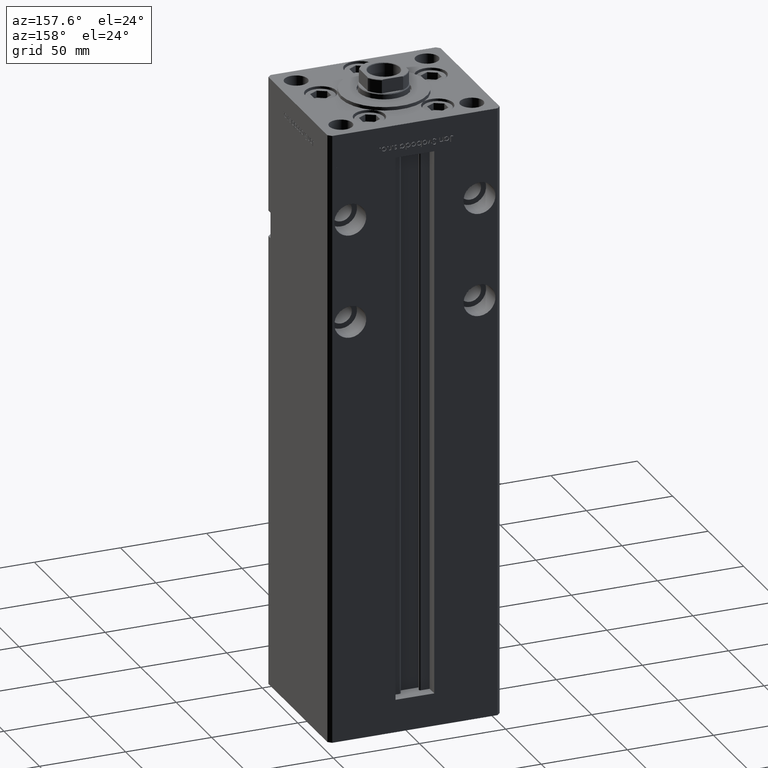
[diagram: clean part render]
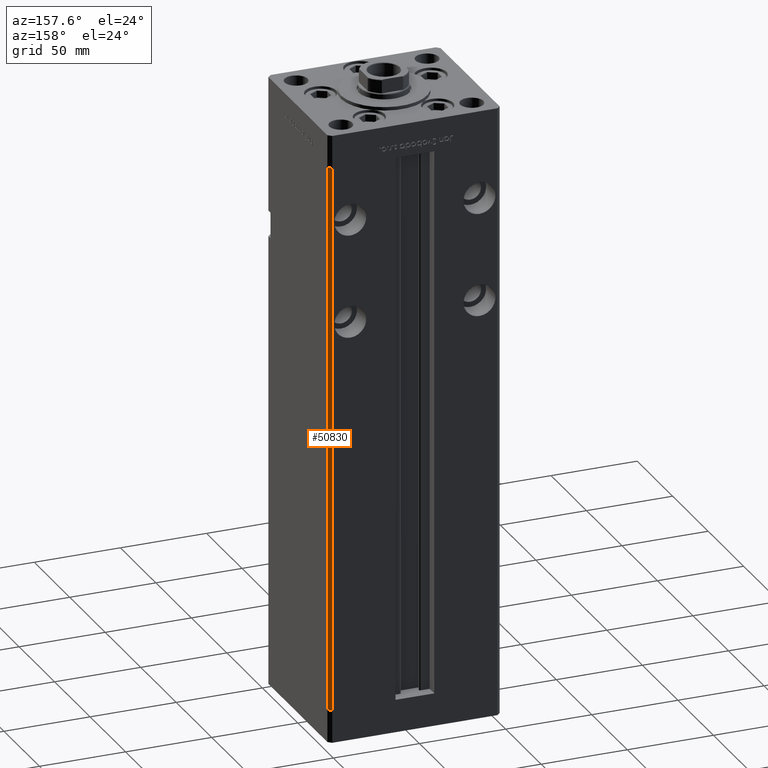
[diagram: same view with one face highlighted and labeled with its STEP entity id]
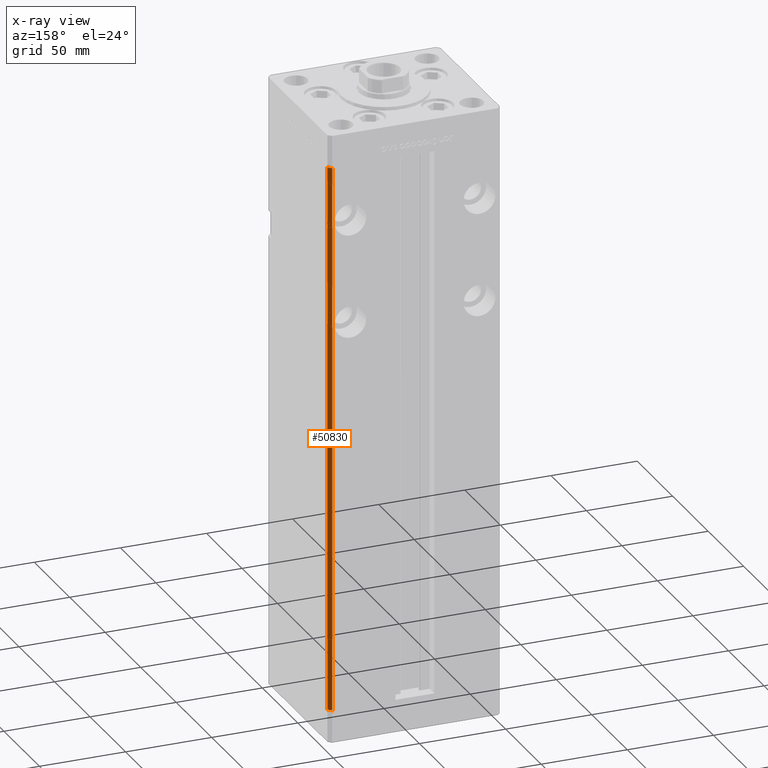
[diagram: x-ray of the same camera — body ghosted, the highlighted face saturated]
A machine part, auxiliary view. The second image highlights one B-rep face of the part: STEP entity #50830.
The next image is the same camera in x-ray: the body ghosted, the highlighted face saturated — about 0% of this face is hidden behind the body in this view.
In plain terms, the highlighted planar face has unit normal (0.7071, 0.7071, 0).
Its self-contained STEP definition (entity closure, byte-faithful):
#1633 = VECTOR ( 'NONE', #43299, 1000.000000000000000 ) ;
#3198 = VERTEX_POINT ( 'NONE', #34552 ) ;
#3510 = EDGE_CURVE ( 'NONE', #5271, #3198, #37989, .T. ) ;
#3794 = CARTESIAN_POINT ( 'NONE',  ( 48.00000000000000711, 43.50000000000000000, 318.5000000000000000 ) ) ;
#3988 = VECTOR ( 'NONE', #24888, 1000.000000000000000 ) ;
#4653 = DIRECTION ( 'NONE',  ( -0.7071067811865487940, 0.7071067811865463515, 0.000000000000000000 ) ) ;
#5271 = VERTEX_POINT ( 'NONE', #12731 ) ;
#6755 = DIRECTION ( 'NONE',  ( -0.000000000000000000, -0.000000000000000000, -1.000000000000000000 ) ) ;
#8671 = DIRECTION ( 'NONE',  ( 0.7071067811865463515, 0.7071067811865487940, -0.000000000000000000 ) ) ;
#10234 = ORIENTED_EDGE ( 'NONE', *, *, #23395, .T. ) ;
#10788 = EDGE_CURVE ( 'NONE', #25036, #23111, #37014, .T. ) ;
#12731 = CARTESIAN_POINT ( 'NONE',  ( 48.00000000000000711, 43.50000000000000000, 0.000000000000000000 ) ) ;
#13771 = EDGE_CURVE ( 'NONE', #25036, #5271, #35825, .T. ) ;
#14070 = VECTOR ( 'NONE', #49856, 1000.000000000000000 ) ;
#16563 = ORIENTED_EDGE ( 'NONE', *, *, #13771, .F. ) ;
#16747 = CARTESIAN_POINT ( 'NONE',  ( 48.00000000000000711, 43.50000000000000000, 318.5000000000000000 ) ) ;
#17073 = CARTESIAN_POINT ( 'NONE',  ( 48.00000000000000711, 43.50000000000000000, 318.5000000000000000 ) ) ;
#22075 = AXIS2_PLACEMENT_3D ( 'NONE', #16747, #8671, #4653 ) ;
#23111 = VERTEX_POINT ( 'NONE', #41833 ) ;
#23395 = EDGE_CURVE ( 'NONE', #23111, #3198, #51645, .T. ) ;
#24296 = PLANE ( 'NONE',  #22075 ) ;
#24888 = DIRECTION ( 'NONE',  ( 0.7071067811865487940, -0.7071067811865463515, 0.000000000000000000 ) ) ;
#25036 = VERTEX_POINT ( 'NONE', #35985 ) ;
#25863 = CARTESIAN_POINT ( 'NONE',  ( 48.00000000000000711, 43.50000000000000000, 0.000000000000000000 ) ) ;
#26854 = CARTESIAN_POINT ( 'NONE',  ( 50.00000000000001421, 41.49999999999999289, 318.5000000000000000 ) ) ;
#34552 = CARTESIAN_POINT ( 'NONE',  ( 50.00000000000001421, 41.49999999999999289, 0.000000000000000000 ) ) ;
#34772 = ORIENTED_EDGE ( 'NONE', *, *, #3510, .F. ) ;
#35825 = LINE ( 'NONE', #3794, #46898 ) ;
#35985 = CARTESIAN_POINT ( 'NONE',  ( 48.00000000000000711, 43.50000000000000000, 318.5000000000000000 ) ) ;
#37014 = LINE ( 'NONE', #17073, #3988 ) ;
#37989 = LINE ( 'NONE', #25863, #14070 ) ;
#41833 = CARTESIAN_POINT ( 'NONE',  ( 50.00000000000001421, 41.49999999999999289, 318.5000000000000000 ) ) ;
#43299 = DIRECTION ( 'NONE',  ( -0.000000000000000000, -0.000000000000000000, -1.000000000000000000 ) ) ;
#43664 = EDGE_LOOP ( 'NONE', ( #34772, #16563, #45394, #10234 ) ) ;
#45035 = FACE_OUTER_BOUND ( 'NONE', #43664, .T. ) ;
#45394 = ORIENTED_EDGE ( 'NONE', *, *, #10788, .T. ) ;
#46898 = VECTOR ( 'NONE', #6755, 1000.000000000000000 ) ;
#49856 = DIRECTION ( 'NONE',  ( 0.7071067811865487940, -0.7071067811865463515, 0.000000000000000000 ) ) ;
#50830 = ADVANCED_FACE ( 'NONE', ( #45035 ), #24296, .T. ) ;
#51645 = LINE ( 'NONE', #26854, #1633 ) ;